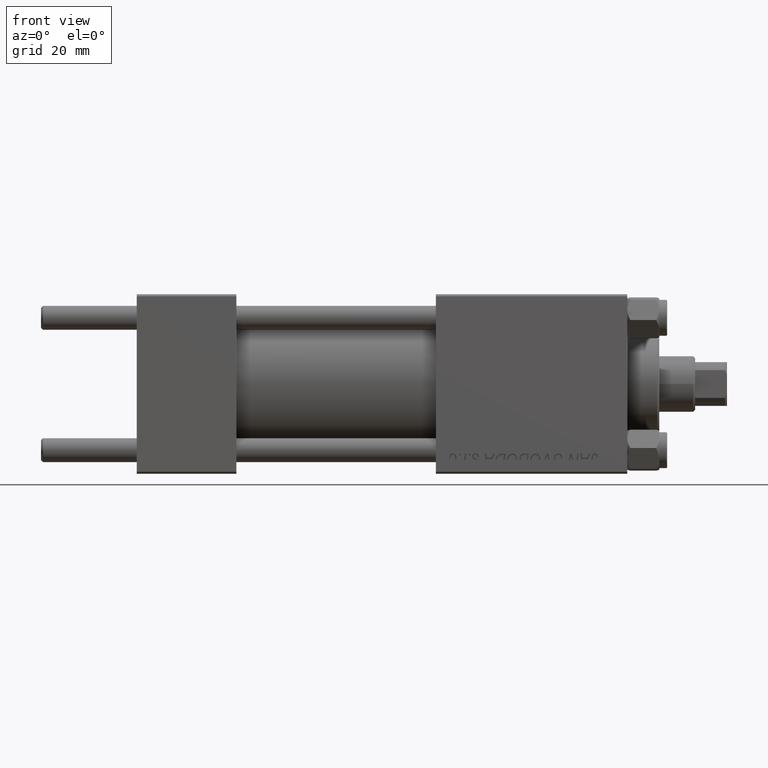
[diagram: clean part render]
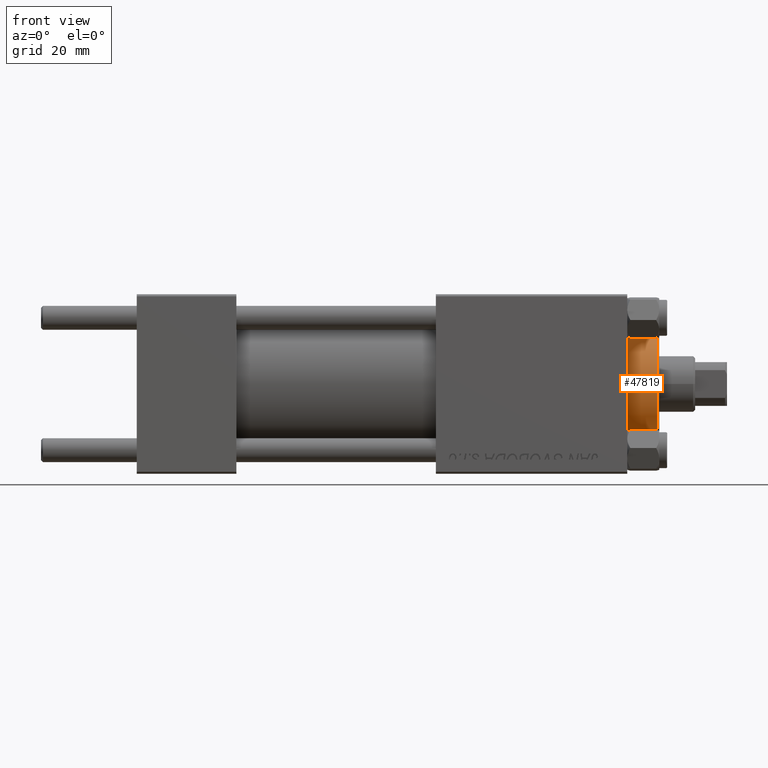
[diagram: same view with one face highlighted and labeled with its STEP entity id]
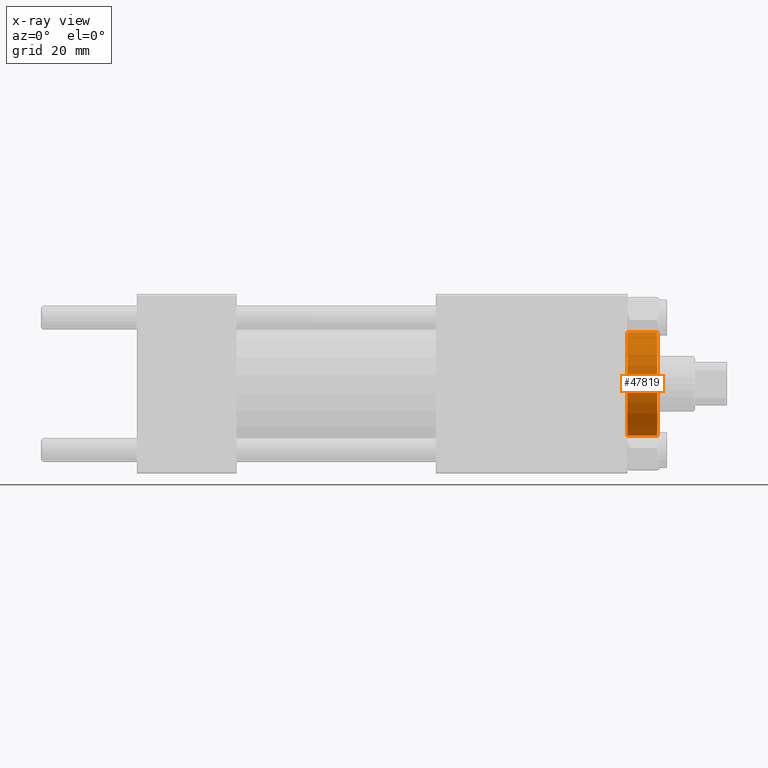
[diagram: x-ray of the same camera — body ghosted, the highlighted face saturated]
A machine part, front view. The second image highlights one B-rep face of the part: STEP entity #47819.
The next image is the same camera in x-ray: the body ghosted, the highlighted face saturated — about 0% of this face is hidden behind the body in this view.
In plain terms, the highlighted cylindrical surface (partial cylindrical patch) has radius 13 mm, axis along (-1, -0, 0).
Its self-contained STEP definition (entity closure, byte-faithful):
#1589 = CARTESIAN_POINT ( 'NONE',  ( -13.00000000000000178, 0.000000000000000000, 28.69999999999999929 ) ) ;
#1680 = AXIS2_PLACEMENT_3D ( 'NONE', #28857, #21751, #32667 ) ;
#5085 = DIRECTION ( 'NONE',  ( -0.000000000000000000, -0.000000000000000000, -1.000000000000000000 ) ) ;
#5213 = ORIENTED_EDGE ( 'NONE', *, *, #30702, .T. ) ;
#5386 = CARTESIAN_POINT ( 'NONE',  ( -13.00000000000000178, 0.000000000000000000, 36.20000000000000995 ) ) ;
#5835 = CARTESIAN_POINT ( 'NONE',  ( -13.00000000000000178, 0.000000000000000000, 36.69999999999999574 ) ) ;
#6321 = VERTEX_POINT ( 'NONE', #30479 ) ;
#8493 = EDGE_CURVE ( 'NONE', #31959, #6321, #17285, .T. ) ;
#10901 = DIRECTION ( 'NONE',  ( -0.000000000000000000, -0.000000000000000000, -1.000000000000000000 ) ) ;
#11018 = DIRECTION ( 'NONE',  ( 0.000000000000000000, 0.000000000000000000, 1.000000000000000000 ) ) ;
#15786 = LINE ( 'NONE', #31242, #44320 ) ;
#17285 = CIRCLE ( 'NONE', #30987, 13.00000000000000178 ) ;
#20453 = CARTESIAN_POINT ( 'NONE',  ( 13.00000000000000178, 1.592040838891559293E-15, 36.20000000000000995 ) ) ;
#20820 = VERTEX_POINT ( 'NONE', #20453 ) ;
#21168 = AXIS2_PLACEMENT_3D ( 'NONE', #45569, #10901, #33691 ) ;
#21751 = DIRECTION ( 'NONE',  ( 0.000000000000000000, 0.000000000000000000, -1.000000000000000000 ) ) ;
#21792 = CYLINDRICAL_SURFACE ( 'NONE', #21168, 13.00000000000000178 ) ;
#23636 = DIRECTION ( 'NONE',  ( -0.000000000000000000, -0.000000000000000000, -1.000000000000000000 ) ) ;
#25340 = FACE_OUTER_BOUND ( 'NONE', #44548, .T. ) ;
#25644 = EDGE_CURVE ( 'NONE', #20820, #6321, #15786, .T. ) ;
#25726 = ORIENTED_EDGE ( 'NONE', *, *, #25991, .T. ) ;
#25936 = ORIENTED_EDGE ( 'NONE', *, *, #8493, .T. ) ;
#25991 = EDGE_CURVE ( 'NONE', #47336, #31959, #28362, .T. ) ;
#28362 = LINE ( 'NONE', #5835, #41084 ) ;
#28857 = CARTESIAN_POINT ( 'NONE',  ( 0.000000000000000000, 0.000000000000000000, 36.20000000000000995 ) ) ;
#30479 = CARTESIAN_POINT ( 'NONE',  ( 13.00000000000000178, 1.592040838891559293E-15, 28.69999999999999929 ) ) ;
#30702 = EDGE_CURVE ( 'NONE', #20820, #47336, #34796, .T. ) ;
#30987 = AXIS2_PLACEMENT_3D ( 'NONE', #45683, #11018, #41871 ) ;
#31242 = CARTESIAN_POINT ( 'NONE',  ( 13.00000000000000178, 1.592040838891559293E-15, 36.69999999999999574 ) ) ;
#31959 = VERTEX_POINT ( 'NONE', #1589 ) ;
#32667 = DIRECTION ( 'NONE',  ( 1.000000000000000000, 0.000000000000000000, 0.000000000000000000 ) ) ;
#33691 = DIRECTION ( 'NONE',  ( -1.000000000000000000, 0.000000000000000000, 0.000000000000000000 ) ) ;
#34517 = ORIENTED_EDGE ( 'NONE', *, *, #25644, .F. ) ;
#34796 = CIRCLE ( 'NONE', #1680, 13.00000000000000178 ) ;
#41084 = VECTOR ( 'NONE', #5085, 1000.000000000000000 ) ;
#41871 = DIRECTION ( 'NONE',  ( 1.000000000000000000, 0.000000000000000000, 0.000000000000000000 ) ) ;
#44320 = VECTOR ( 'NONE', #23636, 1000.000000000000000 ) ;
#44548 = EDGE_LOOP ( 'NONE', ( #34517, #5213, #25726, #25936 ) ) ;
#45569 = CARTESIAN_POINT ( 'NONE',  ( 0.000000000000000000, 0.000000000000000000, 36.69999999999999574 ) ) ;
#45683 = CARTESIAN_POINT ( 'NONE',  ( 0.000000000000000000, 0.000000000000000000, 28.69999999999999929 ) ) ;
#47336 = VERTEX_POINT ( 'NONE', #5386 ) ;
#47819 = ADVANCED_FACE ( 'NONE', ( #25340 ), #21792, .T. ) ;